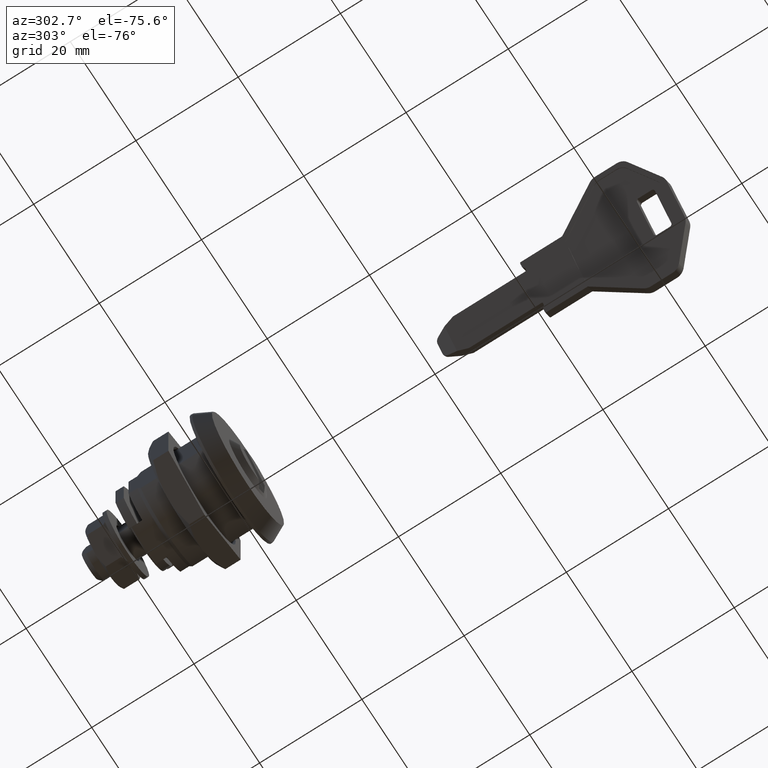
[diagram: clean part render]
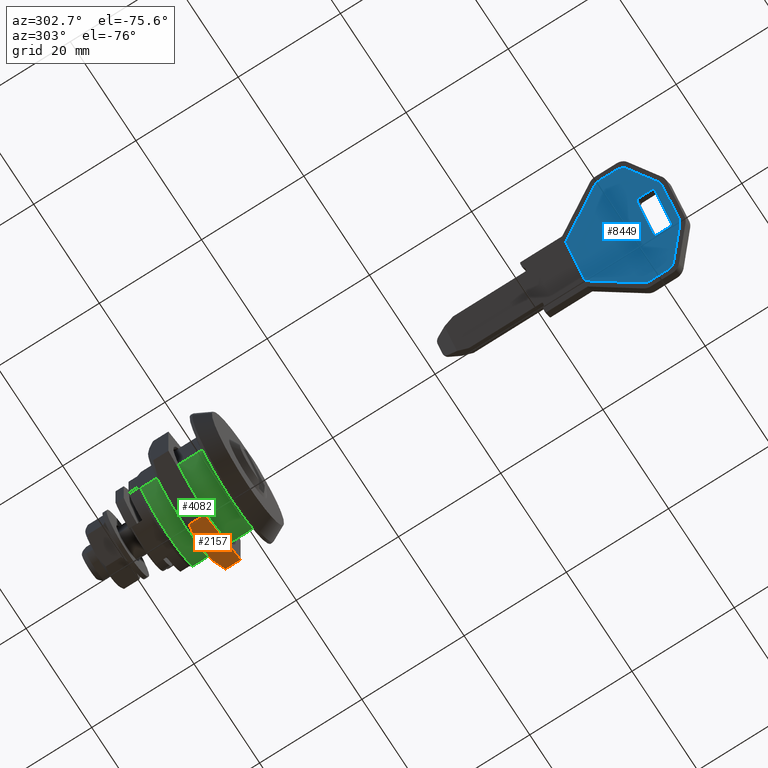
[diagram: same view with three faces highlighted in distinct colors, each labeled with its STEP entity id]
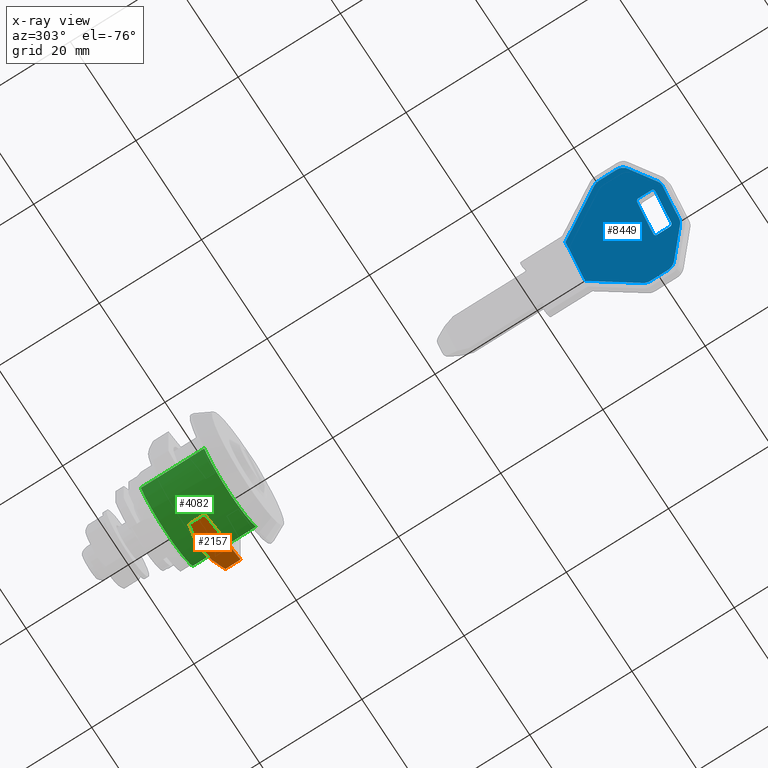
[diagram: x-ray of the same camera — body ghosted, the three highlighted faces saturated]
A machine part, auxiliary view with three faces highlighted in distinct colors.
The next image is the same camera in x-ray (body ghosted, the three faces saturated) — at least one of them is partly hidden behind the body in this view.
Their STEP definitions:

[orange] entity #2157 — the highlighted face is a freeform B-spline surface patch.
#1686=CARTESIAN_POINT('',(5.499999999943011,9.100000000000001,-9.526279441475031));
#1687=VERTEX_POINT('',#1686);
#1818=CARTESIAN_POINT('',(10.999999999735920,8.100000000000001,-6.350852961239140));
#1819=VERTEX_POINT('',#1818);
#1835=CARTESIAN_POINT('',(10.999999999735920,8.100000000000001,-6.350852961239140));
#1836=CARTESIAN_POINT('',(10.102609328839600,8.404464325264136,-6.868961706649316));
#1837=CARTESIAN_POINT('',(9.198472688331396,8.655519008529815,-7.390965239430851));
#1838=CARTESIAN_POINT('',(7.827665716501158,8.916493014349392,-8.182401013623935));
#1839=CARTESIAN_POINT('',(7.368290275703667,8.984167932280997,-8.447621548027431));
#1840=CARTESIAN_POINT('',(6.444011403177242,9.075751188452067,-8.981254203886767));
#1841=CARTESIAN_POINT('',(5.979103148896638,9.099621345262754,-9.249669109644113));
#1842=CARTESIAN_POINT('',(5.507484992308502,9.099998503332685,-9.521957979304945));
#1843=CARTESIAN_POINT('',(5.503742590664639,9.099999999408148,-9.524118655901447));
#1844=CARTESIAN_POINT('',(5.499999999943356,9.099999998507208,-9.526279441661846));
#1845=B_SPLINE_CURVE_WITH_KNOTS('',3,(#1835,#1836,#1837,#1838,#1839,#1840,#1841,#1842,#1843,#1844),.UNSPECIFIED.,.F.,.U.,(4,2,2,2,4),(0.0,0.250000000000000,0.374999999999999,0.499999999999999,0.500999787620165),.UNSPECIFIED.);
#1846=EDGE_CURVE('',#1819,#1687,#1845,.T.);
#1866=CARTESIAN_POINT('',(-3.093180E-010,8.100000000000001,-12.701705921991440));
#1867=VERTEX_POINT('',#1866);
#1868=CARTESIAN_POINT('',(5.499999999943011,9.100000000000001,-9.526279441475031));
#1869=CARTESIAN_POINT('',(5.386761786048562,9.099999971245254,-9.591657554936544));
#1870=CARTESIAN_POINT('',(5.273350478870508,9.098629515742495,-9.657135603664933));
#1871=CARTESIAN_POINT('',(5.042425052041201,9.093036632917475,-9.790460461007548));
#1872=CARTESIAN_POINT('',(4.925050294112856,9.088722183409786,-9.858226809093532));
#1873=CARTESIAN_POINT('',(4.573875231188344,9.071457702702595,-10.060977826205651));
#1874=CARTESIAN_POINT('',(4.340603463115719,9.054173287214155,-10.195657344296700));
#1875=CARTESIAN_POINT('',(3.643211323506200,8.985758877673590,-10.598296883830921));
#1876=CARTESIAN_POINT('',(3.181519654786452,8.918029869556321,-10.864854693048841));
#1877=CARTESIAN_POINT('',(1.804967584883832,8.656592680630688,-11.659607401160541));
#1878=CARTESIAN_POINT('',(0.898595200240665,8.404872994695836,-12.182901741420240));
#1879=CARTESIAN_POINT('',(-1.319558E-010,8.099999999849537,-12.701705922247800));
#1880=B_SPLINE_CURVE_WITH_KNOTS('',3,(#1868,#1869,#1870,#1871,#1872,#1873,#1874,#1875,#1876,#1877,#1878,#1879),.UNSPECIFIED.,.F.,.U.,(4,2,2,2,2,4),(0.500999787648469,0.531249999999999,0.562499999999999,0.624999999999999,0.750000000000000,1.0),.UNSPECIFIED.);
#1881=EDGE_CURVE('',#1687,#1867,#1880,.T.);
#2068=CARTESIAN_POINT('',(1.000475E-011,5.099999999999994,-12.701705922165839));
#2069=VERTEX_POINT('',#2068);
#2075=CARTESIAN_POINT('',(11.0,5.099999999999994,-6.350852961074370));
#2076=VERTEX_POINT('',#2075);
#2077=CARTESIAN_POINT('',(11.0,5.099999999999994,-6.350852961074370));
#2078=CARTESIAN_POINT('',(1.000475E-011,5.099999999999994,-12.701705922165839));
#2079=QUASI_UNIFORM_CURVE('',1,(#2077,#2078),.UNSPECIFIED.,.F.,.U.);
#2080=EDGE_CURVE('',#2076,#2069,#2079,.T.);
#2130=CARTESIAN_POINT('',(-3.093180E-010,8.100000000000001,-12.701705921991440));
#2131=CARTESIAN_POINT('',(1.000475E-011,5.099999999999994,-12.701705922165839));
#2132=QUASI_UNIFORM_CURVE('',1,(#2130,#2131),.UNSPECIFIED.,.F.,.U.);
#2133=EDGE_CURVE('',#1867,#2069,#2132,.T.);
#2141=CARTESIAN_POINT('',(-0.549449978841796,4.900200007752773,-13.018931015362110));
#2142=CARTESIAN_POINT('',(11.549450273736140,4.900200007752773,-6.033627697638846));
#2143=CARTESIAN_POINT('',(-0.549449978841796,9.299800099535581,-13.018931015362110));
#2144=CARTESIAN_POINT('',(11.549450273736140,9.299800099535581,-6.033627697638846));
#2145=B_SPLINE_SURFACE_WITH_KNOTS('',1,1,((#2141,#2143),(#2142,#2144)),.UNSPECIFIED.,.F.,.F.,.U.,(2,2),(2,2),(0.0,13.970606635448080),(0.0,4.399600091782808),.UNSPECIFIED.);
#2146=ORIENTED_EDGE('',*,*,#1846,.F.);
#2147=CARTESIAN_POINT('',(10.999999999735920,8.100000000000001,-6.350852961239140));
#2148=CARTESIAN_POINT('',(11.0,5.099999999999994,-6.350852961074370));
#2149=QUASI_UNIFORM_CURVE('',1,(#2147,#2148),.UNSPECIFIED.,.F.,.U.);
#2150=EDGE_CURVE('',#1819,#2076,#2149,.T.);
#2151=ORIENTED_EDGE('',*,*,#2150,.T.);
#2152=ORIENTED_EDGE('',*,*,#2080,.T.);
#2153=ORIENTED_EDGE('',*,*,#2133,.F.);
#2154=ORIENTED_EDGE('',*,*,#1881,.F.);
#2155=EDGE_LOOP('',(#2146,#2151,#2152,#2153,#2154));
#2156=FACE_OUTER_BOUND('',#2155,.T.);
#2157=ADVANCED_FACE('',(#2156),#2145,.F.);

[blue] entity #8449 — the highlighted face is a freeform B-spline surface patch.
#7842=CARTESIAN_POINT('',(2.368929998169843,-67.847984019646503,-3.641722182522739));
#7843=VERTEX_POINT('',#7842);
#7849=CARTESIAN_POINT('',(-3.641722182518179,-67.847984019646304,2.368929998165283));
#7850=VERTEX_POINT('',#7849);
#7851=CARTESIAN_POINT('',(2.368929998169843,-67.847984019646503,-3.641722182522739));
#7852=CARTESIAN_POINT('',(-3.641722182518179,-67.847984019646304,2.368929998165283));
#7853=QUASI_UNIFORM_CURVE('',1,(#7851,#7852),.UNSPECIFIED.,.F.,.U.);
#7854=EDGE_CURVE('',#7843,#7850,#7853,.T.);
#7870=CARTESIAN_POINT('',(6.859092253645400,-76.317971744925202,-8.131884437998297));
#7871=VERTEX_POINT('',#7870);
#7877=CARTESIAN_POINT('',(6.859092253645400,-76.317971744925202,-8.131884437998297));
#7878=CARTESIAN_POINT('',(2.368929998169843,-67.847984019646503,-3.641722182522739));
#7879=QUASI_UNIFORM_CURVE('',1,(#7877,#7878),.UNSPECIFIED.,.F.,.U.);
#7880=EDGE_CURVE('',#7871,#7843,#7879,.T.);
#7901=CARTESIAN_POINT('',(7.141778367757785,-77.517676412567297,-8.414570552110680));
#7902=VERTEX_POINT('',#7901);
#7908=CARTESIAN_POINT('',(7.141778367757785,-77.517676412567297,-8.414570552110680));
#7909=CARTESIAN_POINT('',(7.141778367757785,-76.851214817315054,-8.414570552110680));
#7910=CARTESIAN_POINT('',(6.859092253645423,-76.317971744925174,-8.131884437998320));
#7918=(BOUNDED_CURVE()B_SPLINE_CURVE(2,(#7908,#7909,#7910),.UNSPECIFIED.,.F.,.U.)CURVE()GEOMETRIC_REPRESENTATION_ITEM()QUASI_UNIFORM_CURVE()RATIONAL_B_SPLINE_CURVE((1.0,0.948712477082207,1.0))REPRESENTATION_ITEM(''));
#7919=EDGE_CURVE('',#7902,#7871,#7918,.T.);
#7931=CARTESIAN_POINT('',(7.141778367757784,-80.912432744212296,-8.414570552110680));
#7932=VERTEX_POINT('',#7931);
#7938=CARTESIAN_POINT('',(7.141778367757784,-80.912432744212296,-8.414570552110680));
#7939=CARTESIAN_POINT('',(7.141778367757785,-77.517676412567297,-8.414570552110680));
#7940=QUASI_UNIFORM_CURVE('',1,(#7938,#7939),.UNSPECIFIED.,.F.,.U.);
#7941=EDGE_CURVE('',#7932,#7902,#7940,.T.);
#7962=CARTESIAN_POINT('',(6.512029356715137,-82.576533332887806,-7.784821541068033));
#7963=VERTEX_POINT('',#7962);
#7969=CARTESIAN_POINT('',(6.512029356715188,-82.576533332887919,-7.784821541068085));
#7970=CARTESIAN_POINT('',(7.141778367757784,-81.982800261188203,-8.414570552110680));
#7971=CARTESIAN_POINT('',(7.141778367757784,-80.912432744212296,-8.414570552110680));
#7979=(BOUNDED_CURVE()B_SPLINE_CURVE(2,(#7969,#7970,#7971),.UNSPECIFIED.,.F.,.U.)CURVE()GEOMETRIC_REPRESENTATION_ITEM()QUASI_UNIFORM_CURVE()RATIONAL_B_SPLINE_CURVE((1.0,0.881674598767958,1.0))REPRESENTATION_ITEM(''));
#7980=EDGE_CURVE('',#7963,#7932,#7979,.T.);
#7992=CARTESIAN_POINT('',(2.687764787001828,-86.182084608322000,-3.960556971354725));
#7993=VERTEX_POINT('',#7992);
#7999=CARTESIAN_POINT('',(2.687764787001828,-86.182084608322000,-3.960556971354725));
#8000=CARTESIAN_POINT('',(6.512029356715137,-82.576533332887806,-7.784821541068033));
#8001=QUASI_UNIFORM_CURVE('',1,(#7999,#8000),.UNSPECIFIED.,.F.,.U.);
#8002=EDGE_CURVE('',#7993,#7963,#8001,.T.);
#8023=CARTESIAN_POINT('',(1.903300259874623,-86.517984019646306,-3.176092444227520));
#8024=VERTEX_POINT('',#8023);
#8030=CARTESIAN_POINT('',(1.903300259874623,-86.517984019646306,-3.176092444227520));
#8031=CARTESIAN_POINT('',(2.331489665783226,-86.517984019646306,-3.604281850136123));
#8032=CARTESIAN_POINT('',(2.687764787001823,-86.182084608321986,-3.960556971354721));
#8040=(BOUNDED_CURVE()B_SPLINE_CURVE(2,(#8030,#8031,#8032),.UNSPECIFIED.,.F.,.U.)CURVE()GEOMETRIC_REPRESENTATION_ITEM()QUASI_UNIFORM_CURVE()RATIONAL_B_SPLINE_CURVE((1.0,0.957092026489052,1.0))REPRESENTATION_ITEM(''));
#8041=EDGE_CURVE('',#8024,#7993,#8040,.T.);
#8053=CARTESIAN_POINT('',(-3.176092444118981,-86.517984019646406,1.903300259766084));
#8054=VERTEX_POINT('',#8053);
#8060=CARTESIAN_POINT('',(-3.176092444118981,-86.517984019646406,1.903300259766084));
#8061=CARTESIAN_POINT('',(1.903300259874623,-86.517984019646306,-3.176092444227520));
#8062=QUASI_UNIFORM_CURVE('',1,(#8060,#8061),.UNSPECIFIED.,.F.,.U.);
#8063=EDGE_CURVE('',#8054,#8024,#8062,.T.);
#8084=CARTESIAN_POINT('',(-3.960556971246317,-86.182084608321901,2.687764786893419));
#8085=VERTEX_POINT('',#8084);
#8091=CARTESIAN_POINT('',(-3.960556971246304,-86.182084608321873,2.687764786893407));
#8092=CARTESIAN_POINT('',(-3.604281850027664,-86.517984019646306,2.331489665674767));
#8093=CARTESIAN_POINT('',(-3.176092444118981,-86.517984019646306,1.903300259766084));
#8101=(BOUNDED_CURVE()B_SPLINE_CURVE(2,(#8091,#8092,#8093),.UNSPECIFIED.,.F.,.U.)CURVE()GEOMETRIC_REPRESENTATION_ITEM()QUASI_UNIFORM_CURVE()RATIONAL_B_SPLINE_CURVE((1.0,0.957092026489037,1.0))REPRESENTATION_ITEM(''));
#8102=EDGE_CURVE('',#8085,#8054,#8101,.T.);
#8114=CARTESIAN_POINT('',(-7.784821541068052,-82.576533332785601,6.512029356715155));
#8115=VERTEX_POINT('',#8114);
#8121=CARTESIAN_POINT('',(-7.784821541068052,-82.576533332785601,6.512029356715155));
#8122=CARTESIAN_POINT('',(-3.960556971246317,-86.182084608321901,2.687764786893419));
#8123=QUASI_UNIFORM_CURVE('',1,(#8121,#8122),.UNSPECIFIED.,.F.,.U.);
#8124=EDGE_CURVE('',#8115,#8085,#8123,.T.);
#8145=CARTESIAN_POINT('',(-8.414570552110785,-80.912432744212396,7.141778367757889));
#8146=VERTEX_POINT('',#8145);
#8152=CARTESIAN_POINT('',(-8.414570552110686,-80.912432744212396,7.141778367757789));
#8153=CARTESIAN_POINT('',(-8.414570552071895,-81.982800261122435,7.141778367718999));
#8154=CARTESIAN_POINT('',(-7.784821541068037,-82.576533332785573,6.512029356715140));
#8162=(BOUNDED_CURVE()B_SPLINE_CURVE(2,(#8152,#8153,#8154),.UNSPECIFIED.,.F.,.U.)CURVE()GEOMETRIC_REPRESENTATION_ITEM()QUASI_UNIFORM_CURVE()RATIONAL_B_SPLINE_CURVE((1.0,0.881674598780038,1.0))REPRESENTATION_ITEM(''));
#8163=EDGE_CURVE('',#8146,#8115,#8162,.T.);
#8175=CARTESIAN_POINT('',(-8.414570552110686,-77.517676412576392,7.141778367757789));
#8176=VERTEX_POINT('',#8175);
#8182=CARTESIAN_POINT('',(-8.414570552110686,-77.517676412576392,7.141778367757789));
#8183=CARTESIAN_POINT('',(-8.414570552110785,-80.912432744212396,7.141778367757889));
#8184=QUASI_UNIFORM_CURVE('',1,(#8182,#8183),.UNSPECIFIED.,.F.,.U.);
#8185=EDGE_CURVE('',#8176,#8146,#8184,.T.);
#8206=CARTESIAN_POINT('',(-8.131884437998300,-76.317971744934098,6.859092253645405));
#8207=VERTEX_POINT('',#8206);
#8213=CARTESIAN_POINT('',(-8.131884437998252,-76.317971744934155,6.859092253645356));
#8214=CARTESIAN_POINT('',(-8.414570552110686,-76.851214817324063,7.141778367757789));
#8215=CARTESIAN_POINT('',(-8.414570552110686,-77.517676412576392,7.141778367757789));
#8223=(BOUNDED_CURVE()B_SPLINE_CURVE(2,(#8213,#8214,#8215),.UNSPECIFIED.,.F.,.U.)CURVE()GEOMETRIC_REPRESENTATION_ITEM()QUASI_UNIFORM_CURVE()RATIONAL_B_SPLINE_CURVE((1.0,0.948712477082194,1.0))REPRESENTATION_ITEM(''));
#8224=EDGE_CURVE('',#8207,#8176,#8223,.T.);
#8237=CARTESIAN_POINT('',(-3.641722182518179,-67.847984019646304,2.368929998165283));
#8238=CARTESIAN_POINT('',(-8.131884437998300,-76.317971744934098,6.859092253645405));
#8239=QUASI_UNIFORM_CURVE('',1,(#8237,#8238),.UNSPECIFIED.,.F.,.U.);
#8240=EDGE_CURVE('',#7850,#8207,#8239,.T.);
#8348=CARTESIAN_POINT('',(-9.191610150506987,-87.450550483460319,7.918817966154108));
#8349=CARTESIAN_POINT('',(-9.191610150506985,-66.915417055063969,7.918817966154108));
#8350=CARTESIAN_POINT('',(7.918818383407795,-87.450550483460319,-9.191610567760675));
#8351=CARTESIAN_POINT('',(7.918818383407797,-66.915417055063969,-9.191610567760675));
#8352=B_SPLINE_SURFACE_WITH_KNOTS('',1,1,((#8348,#8350),(#8349,#8351)),.UNSPECIFIED.,.F.,.F.,.U.,(2,2),(2,2),(0.0,20.535133428396350),(0.0,24.197800504805599),.UNSPECIFIED.);
#8353=ORIENTED_EDGE('',*,*,#8240,.F.);
#8354=ORIENTED_EDGE('',*,*,#7854,.F.);
#8355=ORIENTED_EDGE('',*,*,#7880,.F.);
#8356=ORIENTED_EDGE('',*,*,#7919,.F.);
#8357=ORIENTED_EDGE('',*,*,#7941,.F.);
#8358=ORIENTED_EDGE('',*,*,#7980,.F.);
#8359=ORIENTED_EDGE('',*,*,#8002,.F.);
#8360=ORIENTED_EDGE('',*,*,#8041,.F.);
#8361=ORIENTED_EDGE('',*,*,#8063,.F.);
#8362=ORIENTED_EDGE('',*,*,#8102,.F.);
#8363=ORIENTED_EDGE('',*,*,#8124,.F.);
#8364=ORIENTED_EDGE('',*,*,#8163,.F.);
#8365=ORIENTED_EDGE('',*,*,#8185,.F.);
#8366=ORIENTED_EDGE('',*,*,#8224,.F.);
#8367=EDGE_LOOP('',(#8353,#8354,#8355,#8356,#8357,#8358,#8359,#8360,#8361,#8362,#8363,#8364,#8365,#8366));
#8368=FACE_OUTER_BOUND('',#8367,.T.);
#8369=CARTESIAN_POINT('',(-3.464823168516173,-82.017984019657007,2.192030984163276));
#8370=VERTEX_POINT('',#8369);
#8371=CARTESIAN_POINT('',(-3.464823168502045,-84.517984019656410,2.192030984149148));
#8372=VERTEX_POINT('',#8371);
#8373=CARTESIAN_POINT('',(-3.464823168516173,-82.017984019657007,2.192030984163276));
#8374=CARTESIAN_POINT('',(-3.464823168502045,-84.517984019656410,2.192030984149148));
#8375=QUASI_UNIFORM_CURVE('',1,(#8373,#8374),.UNSPECIFIED.,.F.,.U.);
#8376=EDGE_CURVE('',#8370,#8372,#8375,.T.);
#8377=ORIENTED_EDGE('',*,*,#8376,.T.);
#8378=CARTESIAN_POINT('',(-3.111269783971367,-85.017984019656410,1.838477599618470));
#8379=VERTEX_POINT('',#8378);
#8380=CARTESIAN_POINT('',(-3.464823168502045,-84.517984019656410,2.192030984149147));
#8381=CARTESIAN_POINT('',(-3.464823168502045,-85.017984019656424,2.192030984149148));
#8382=CARTESIAN_POINT('',(-3.111269783959580,-85.017984019656410,1.838477599606683));
#8390=(BOUNDED_CURVE()B_SPLINE_CURVE(2,(#8380,#8381,#8382),.UNSPECIFIED.,.F.,.U.)CURVE()GEOMETRIC_REPRESENTATION_ITEM()QUASI_UNIFORM_CURVE()RATIONAL_B_SPLINE_CURVE((1.0,0.707106781186548,1.0))REPRESENTATION_ITEM(''));
#8391=EDGE_CURVE('',#8372,#8379,#8390,.T.);
#8392=ORIENTED_EDGE('',*,*,#8391,.T.);
#8393=CARTESIAN_POINT('',(1.838477599620805,-85.017984019676305,-3.111269783973703));
#8394=VERTEX_POINT('',#8393);
#8395=CARTESIAN_POINT('',(-3.111269783971367,-85.017984019656410,1.838477599618470));
#8396=CARTESIAN_POINT('',(1.838477599620805,-85.017984019676305,-3.111269783973703));
#8397=QUASI_UNIFORM_CURVE('',1,(#8395,#8396),.UNSPECIFIED.,.F.,.U.);
#8398=EDGE_CURVE('',#8379,#8394,#8397,.T.);
#8399=ORIENTED_EDGE('',*,*,#8398,.T.);
#8400=CARTESIAN_POINT('',(2.192030984163270,-84.517984019659707,-3.464823168516168));
#8401=VERTEX_POINT('',#8400);
#8402=CARTESIAN_POINT('',(1.838477599620805,-85.017984019676305,-3.111269783973703));
#8403=CARTESIAN_POINT('',(1.907969530841728,-85.018349586275392,-3.180761715194627));
#8404=CARTESIAN_POINT('',(2.017543209259075,-84.970669144270786,-3.290335393611969));
#8405=CARTESIAN_POINT('',(2.153664986342869,-84.787418085676322,-3.426457170695770));
#8406=CARTESIAN_POINT('',(2.192393612291242,-84.624508304825852,-3.465185796644136));
#8407=CARTESIAN_POINT('',(2.192030984163270,-84.517984019659707,-3.464823168516168));
#8408=B_SPLINE_CURVE_WITH_KNOTS('',3,(#8402,#8403,#8404,#8405,#8406,#8407),.UNSPECIFIED.,.F.,.U.,(4,1,1,4),(0.000000517782153,0.294557198350114,0.466351356550280,0.785476941799237),.UNSPECIFIED.);
#8409=EDGE_CURVE('',#8394,#8401,#8408,.T.);
#8410=ORIENTED_EDGE('',*,*,#8409,.T.);
#8411=CARTESIAN_POINT('',(2.192030984156178,-82.017984019656311,-3.464823168509075));
#8412=VERTEX_POINT('',#8411);
#8413=CARTESIAN_POINT('',(2.192030984163270,-84.517984019659707,-3.464823168516168));
#8414=CARTESIAN_POINT('',(2.192030984156178,-82.017984019656311,-3.464823168509075));
#8415=QUASI_UNIFORM_CURVE('',1,(#8413,#8414),.UNSPECIFIED.,.F.,.U.);
#8416=EDGE_CURVE('',#8401,#8412,#8415,.T.);
#8417=ORIENTED_EDGE('',*,*,#8416,.T.);
#8418=CARTESIAN_POINT('',(1.838477599613643,-81.517984019656311,-3.111269783966540));
#8419=VERTEX_POINT('',#8418);
#8420=CARTESIAN_POINT('',(2.192030984156178,-82.017984019656311,-3.464823168509075));
#8421=CARTESIAN_POINT('',(2.192115443732875,-81.944330025867046,-3.464907628085774));
#8422=CARTESIAN_POINT('',(2.172495087900871,-81.821705975822553,-3.445287272253764));
#8423=CARTESIAN_POINT('',(2.107492654994295,-81.684211559896909,-3.380284839347195));
#8424=CARTESIAN_POINT('',(2.006013469476351,-81.560226815657686,-3.278805653829244));
#8425=CARTESIAN_POINT('',(1.907964735416991,-81.517663489386152,-3.180756919769891));
#8426=CARTESIAN_POINT('',(1.838477599613643,-81.517984019656311,-3.111269783966540));
#8427=B_SPLINE_CURVE_WITH_KNOTS('',3,(#8420,#8421,#8422,#8423,#8424,#8425,#8426),.UNSPECIFIED.,.F.,.U.,(4,1,1,1,4),(0.000000517785071,0.220919928792135,0.368226022245406,0.490920261221930,0.785476941782743),.UNSPECIFIED.);
#8428=EDGE_CURVE('',#8412,#8419,#8427,.T.);
#8429=ORIENTED_EDGE('',*,*,#8428,.T.);
#8430=CARTESIAN_POINT('',(-3.111269783973810,-81.517984019656311,1.838477599620913));
#8431=VERTEX_POINT('',#8430);
#8432=CARTESIAN_POINT('',(1.838477599613643,-81.517984019656311,-3.111269783966540));
#8433=CARTESIAN_POINT('',(-3.111269783973810,-81.517984019656311,1.838477599620913));
#8434=QUASI_UNIFORM_CURVE('',1,(#8432,#8433),.UNSPECIFIED.,.F.,.U.);
#8435=EDGE_CURVE('',#8419,#8431,#8434,.T.);
#8436=ORIENTED_EDGE('',*,*,#8435,.T.);
#8437=CARTESIAN_POINT('',(-3.111269783973810,-81.517984019656311,1.838477599620913));
#8438=CARTESIAN_POINT('',(-3.163352295407151,-81.517875862002768,1.890560111054253));
#8439=CARTESIAN_POINT('',(-3.261611798215691,-81.549263742139885,1.988819613862795));
#8440=CARTESIAN_POINT('',(-3.380068145307377,-81.673444053057054,2.107275960954482));
#8441=CARTESIAN_POINT('',(-3.449778252763207,-81.837985807292313,2.176986068410311));
#8442=CARTESIAN_POINT('',(-3.464842460942609,-81.960719376286178,2.192050276589710));
#8443=CARTESIAN_POINT('',(-3.464823168516173,-82.017984019657007,2.192030984163276));
#8444=B_SPLINE_CURVE_WITH_KNOTS('',3,(#8437,#8438,#8439,#8440,#8441,#8442,#8443),.UNSPECIFIED.,.F.,.U.,(4,1,1,1,4),(0.000000517784777,0.220919928794633,0.417251437326385,0.613658140797493,0.785476941790621),.UNSPECIFIED.);
#8445=EDGE_CURVE('',#8431,#8370,#8444,.T.);
#8446=ORIENTED_EDGE('',*,*,#8445,.T.);
#8447=EDGE_LOOP('',(#8377,#8392,#8399,#8410,#8417,#8429,#8436,#8446));
#8448=FACE_BOUND('',#8447,.T.);
#8449=ADVANCED_FACE('',(#8368,#8448),#8352,.T.);

[green] entity #4082 — the highlighted face is a freeform B-spline surface patch.
#3912=CARTESIAN_POINT('',(7.900000000000001,12.500000000000000,-5.276362383308960));
#3913=VERTEX_POINT('',#3912);
#3923=CARTESIAN_POINT('',(-7.900000000000000,12.500000000000000,-5.276362383309820));
#3924=VERTEX_POINT('',#3923);
#3925=CARTESIAN_POINT('',(-7.900000000000000,12.500000000000000,-5.276362383309820));
#3926=CARTESIAN_POINT('',(-7.522291052663999,12.500000000000000,-5.842039394240787));
#3927=CARTESIAN_POINT('',(-6.582041355589240,12.500000000000020,-6.966844859912123));
#3928=CARTESIAN_POINT('',(-4.938365763873002,12.499999999999970,-8.201913268249207));
#3929=CARTESIAN_POINT('',(-3.075218184715149,12.500000000000110,-9.055392688372482));
#3930=CARTESIAN_POINT('',(-1.267264144562833,12.499999999999741,-9.479042267033931));
#3931=CARTESIAN_POINT('',(0.390884891367422,12.500000000000259,-9.529812937420903));
#3932=CARTESIAN_POINT('',(1.840212816818792,12.499999999999840,-9.351020344501134));
#3933=CARTESIAN_POINT('',(3.064307008581730,12.500000000000060,-9.024287180184421));
#3934=CARTESIAN_POINT('',(4.320275621557849,12.500000000000000,-8.494893521641854));
#3935=CARTESIAN_POINT('',(5.408888685409333,12.499999999999970,-7.846754318607458));
#3936=CARTESIAN_POINT('',(6.700950704324581,12.500000000000190,-6.812455679869258));
#3937=CARTESIAN_POINT('',(7.468386584941040,12.499999999999730,-5.922932250368427));
#3938=CARTESIAN_POINT('',(7.900000000000001,12.500000000000000,-5.276362383308960));
#3939=B_SPLINE_CURVE_WITH_KNOTS('',3,(#3925,#3926,#3927,#3928,#3929,#3930,#3931,#3932,#3933,#3934,#3935,#3936,#3937,#3938),.UNSPECIFIED.,.F.,.U.,(4,1,1,1,1,1,1,1,1,1,1,4),(0.000000050939455,2.040585883638418,4.372763249655371,6.121878680583039,8.162524693223338,9.911584010433764,11.077660333355890,12.535245254925290,13.701324429742099,15.158930948000970,16.324990157011580,18.657129072743871),.UNSPECIFIED.);
#3940=EDGE_CURVE('',#3924,#3913,#3939,.T.);
#4034=CARTESIAN_POINT('',(8.035411932668426,12.810000000000000,-5.067756414068099));
#4035=CARTESIAN_POINT('',(8.035411932668426,-0.217750000000012,-5.067756414068099));
#4036=CARTESIAN_POINT('',(-0.234414921586586,12.810000000000002,-18.180356933167889));
#4037=CARTESIAN_POINT('',(-0.234414921586587,-0.217750000000011,-18.180356933167889));
#4038=CARTESIAN_POINT('',(-8.163404706857509,12.810000000000000,-4.858891189567346));
#4039=CARTESIAN_POINT('',(-8.163404706857509,-0.217750000000011,-4.858891189567346));
#4047=(BOUNDED_SURFACE()B_SPLINE_SURFACE(1,2,((#4034,#4036,#4038),(#4035,#4037,#4039)),.UNSPECIFIED.,.F.,.F.,.U.)B_SPLINE_SURFACE_WITH_KNOTS((2,2),(3,3),(0.0,13.027750000000021),(0.0,21.281022522014929),.UNSPECIFIED.)GEOMETRIC_REPRESENTATION_ITEM()RATIONAL_B_SPLINE_SURFACE(((1.0,0.522498564715948,1.0),(1.0,0.522498564715948,1.0)))REPRESENTATION_ITEM('')SURFACE());
#4048=CARTESIAN_POINT('',(-7.900000000000000,0.099999999999989,-5.276362383309820));
#4049=VERTEX_POINT('',#4048);
#4050=CARTESIAN_POINT('',(-7.900000000000000,12.500000000000000,-5.276362383309820));
#4051=CARTESIAN_POINT('',(-7.900000000000000,0.099999999999989,-5.276362383309820));
#4052=QUASI_UNIFORM_CURVE('',1,(#4050,#4051),.UNSPECIFIED.,.F.,.U.);
#4053=EDGE_CURVE('',#3924,#4049,#4052,.T.);
#4054=ORIENTED_EDGE('',*,*,#4053,.F.);
#4055=ORIENTED_EDGE('',*,*,#3940,.T.);
#4056=CARTESIAN_POINT('',(7.900000000000000,0.099999999999989,-5.276362383308960));
#4057=VERTEX_POINT('',#4056);
#4058=CARTESIAN_POINT('',(7.900000000000001,12.500000000000000,-5.276362383308960));
#4059=CARTESIAN_POINT('',(7.900000000000000,0.099999999999989,-5.276362383308960));
#4060=QUASI_UNIFORM_CURVE('',1,(#4058,#4059),.UNSPECIFIED.,.F.,.U.);
#4061=EDGE_CURVE('',#3913,#4057,#4060,.T.);
#4062=ORIENTED_EDGE('',*,*,#4061,.T.);
#4063=CARTESIAN_POINT('',(7.900000000000000,0.099999999999989,-5.276362383308960));
#4064=CARTESIAN_POINT('',(7.522311426630667,0.099999999999989,-5.842070082739736));
#4065=CARTESIAN_POINT('',(6.832681515005107,0.099999999999989,-6.666758499925419));
#4066=CARTESIAN_POINT('',(5.498946293683360,0.099999999999989,-7.803459426545867));
#4067=CARTESIAN_POINT('',(4.155338141492715,0.099999999999989,-8.603434039321295));
#4068=CARTESIAN_POINT('',(2.692017679014882,0.099999999999989,-9.142237845748067));
#4069=CARTESIAN_POINT('',(1.265269651252211,0.099999999999989,-9.453542174573588));
#4070=CARTESIAN_POINT('',(-0.293126601079515,0.099999999999990,-9.549356763530053));
#4071=CARTESIAN_POINT('',(-1.939558891103437,0.099999999999988,-9.346212142811318));
#4072=CARTESIAN_POINT('',(-3.339740960008871,0.099999999999991,-8.926017398213039));
#4073=CARTESIAN_POINT('',(-4.667371338479357,0.099999999999987,-8.317792028769054));
#4074=CARTESIAN_POINT('',(-6.296775596576222,0.099999999999991,-7.243429635689117));
#4075=CARTESIAN_POINT('',(-7.360661640387500,0.099999999999989,-6.084730415492845));
#4076=CARTESIAN_POINT('',(-7.900000000000000,0.099999999999989,-5.276362383309820));
#4077=B_SPLINE_CURVE_WITH_KNOTS('',3,(#4063,#4064,#4065,#4066,#4067,#4068,#4069,#4070,#4071,#4072,#4073,#4074,#4075,#4076),.UNSPECIFIED.,.F.,.U.,(4,1,1,1,1,1,1,1,1,1,1,4),(0.000000050934275,2.040585883633671,3.206674565288793,5.247320278501888,6.704922666614769,7.871006503405829,9.620071807505921,11.369183106073351,12.826762684972691,13.992846816486500,15.741963940311599,18.657129072743739),.UNSPECIFIED.);
#4078=EDGE_CURVE('',#4057,#4049,#4077,.T.);
#4079=ORIENTED_EDGE('',*,*,#4078,.T.);
#4080=EDGE_LOOP('',(#4054,#4055,#4062,#4079));
#4081=FACE_OUTER_BOUND('',#4080,.T.);
#4082=ADVANCED_FACE('',(#4081),#4047,.T.);